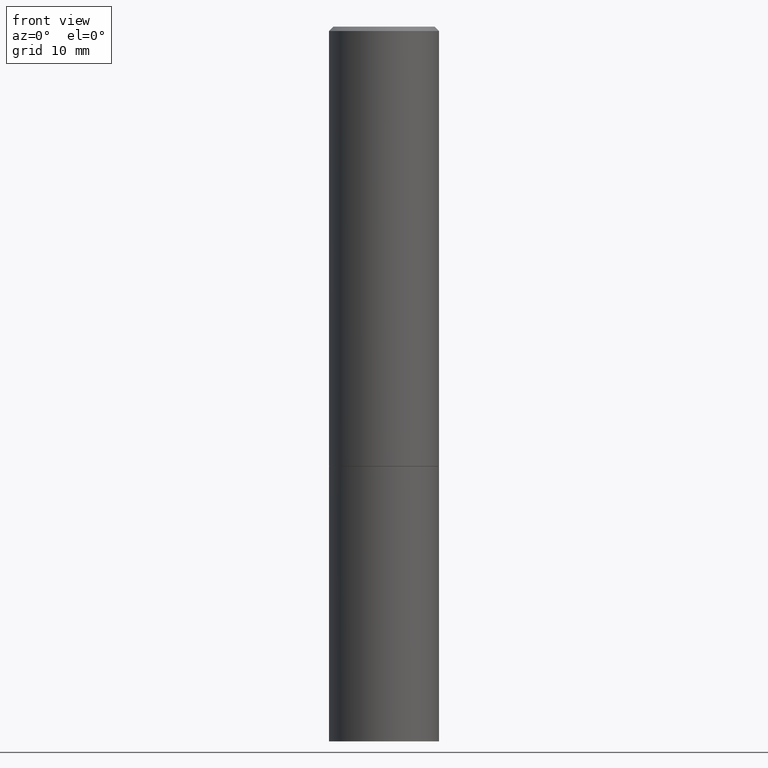
[diagram: clean part render]
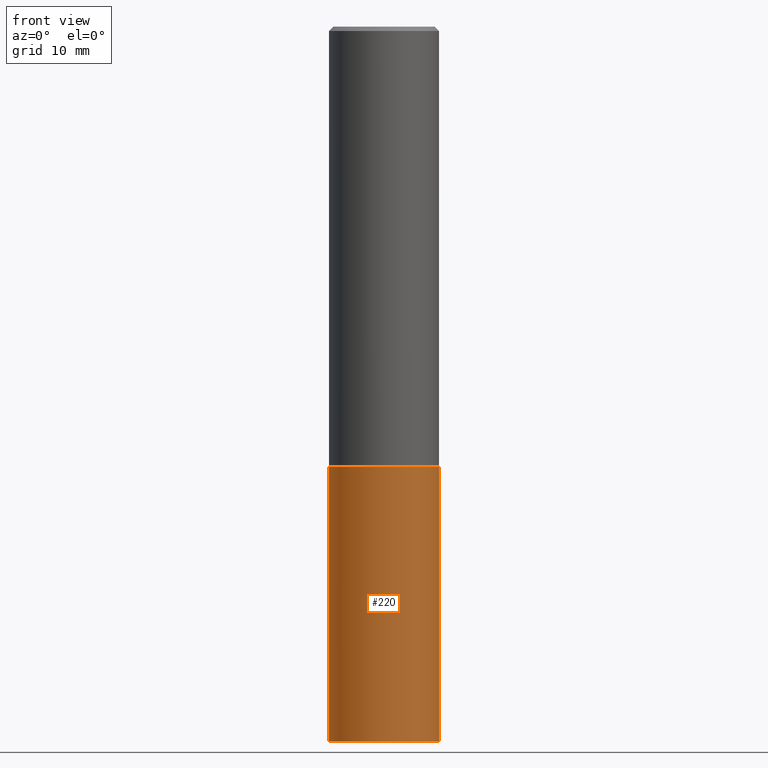
[diagram: same view with one face highlighted and labeled with its STEP entity id]
A machine part, front view. The second image highlights one B-rep face of the part: STEP entity #220.
In plain terms, the highlighted cylindrical surface (partial cylindrical patch) has radius 6.35 mm, axis along (-0, 0, 1).
Its self-contained STEP definition (entity closure, byte-faithful):
#2 = ORIENTED_EDGE ( 'NONE', *, *, #317, .T. ) ;
#3 = VERTEX_POINT ( 'NONE', #323 ) ;
#7 = DIRECTION ( 'NONE',  ( 1.000000000000000000, -6.982962677686266711E-15, 4.876176775795935793E-29 ) ) ;
#24 = VECTOR ( 'NONE', #332, 39.37007874015748143 ) ;
#28 = CARTESIAN_POINT ( 'NONE',  ( -0.2500000000000000000, -7.388781675063007725E-15, -2.000000000000000000 ) ) ;
#38 = EDGE_CURVE ( 'NONE', #135, #43, #155, .T. ) ;
#43 = VERTEX_POINT ( 'NONE', #98 ) ;
#48 = EDGE_CURVE ( 'NONE', #3, #118, #101, .T. ) ;
#53 = ORIENTED_EDGE ( 'NONE', *, *, #250, .F. ) ;
#62 = DIRECTION ( 'NONE',  ( -2.445468806185136597E-29, 3.491481338843145583E-15, 1.000000000000000000 ) ) ;
#66 = AXIS2_PLACEMENT_3D ( 'NONE', #318, #62, #7 ) ;
#98 = CARTESIAN_POINT ( 'NONE',  ( 0.2500000000000000000, -8.728703347107857054E-15, -2.000000000000000000 ) ) ;
#101 = LINE ( 'NONE', #106, #24 ) ;
#106 = CARTESIAN_POINT ( 'NONE',  ( -0.2500000000000000000, 1.776356839400250465E-15, -1.229733772563726445E-29 ) ) ;
#109 = AXIS2_PLACEMENT_3D ( 'NONE', #181, #287, #315 ) ;
#118 = VERTEX_POINT ( 'NONE', #28 ) ;
#135 = VERTEX_POINT ( 'NONE', #278 ) ;
#136 = CIRCLE ( 'NONE', #337, 0.2500000000000000000 ) ;
#150 = CARTESIAN_POINT ( 'NONE',  ( 4.890937612370273194E-29, -6.982962677686291165E-15, -2.000000000000000000 ) ) ;
#155 = LINE ( 'NONE', #265, #289 ) ;
#181 = CARTESIAN_POINT ( 'NONE',  ( 7.947773620101693940E-29, -1.134731435124022443E-14, -3.250000000000000000 ) ) ;
#192 = ORIENTED_EDGE ( 'NONE', *, *, #38, .T. ) ;
#220 = ADVANCED_FACE ( 'NONE', ( #291 ), #322, .T. ) ;
#236 = DIRECTION ( 'NONE',  ( -2.445468806185136597E-29, 3.491481338843145583E-15, 1.000000000000000000 ) ) ;
#241 = DIRECTION ( 'NONE',  ( -2.445468806185136877E-29, 3.491481338843145188E-15, 1.000000000000000000 ) ) ;
#250 = EDGE_CURVE ( 'NONE', #118, #43, #136, .T. ) ;
#265 = CARTESIAN_POINT ( 'NONE',  ( 0.2500000000000000000, -1.745740669421566678E-15, 1.219044193948983948E-29 ) ) ;
#278 = CARTESIAN_POINT ( 'NONE',  ( 0.2500000000000000000, -1.309305502066178953E-14, -3.250000000000000000 ) ) ;
#287 = DIRECTION ( 'NONE',  ( -2.445468806185136597E-29, 3.491481338843145583E-15, 1.000000000000000000 ) ) ;
#289 = VECTOR ( 'NONE', #241, 39.37007874015748143 ) ;
#290 = CIRCLE ( 'NONE', #109, 0.2500000000000000000 ) ;
#291 = FACE_OUTER_BOUND ( 'NONE', #350, .T. ) ;
#295 = ORIENTED_EDGE ( 'NONE', *, *, #48, .F. ) ;
#315 = DIRECTION ( 'NONE',  ( 1.000000000000000000, -6.982962677686262766E-15, 0.000000000000000000 ) ) ;
#317 = EDGE_CURVE ( 'NONE', #3, #135, #290, .T. ) ;
#318 = CARTESIAN_POINT ( 'NONE',  ( 0.000000000000000000, 0.000000000000000000, 0.000000000000000000 ) ) ;
#319 = DIRECTION ( 'NONE',  ( 1.000000000000000000, -6.982962677686266711E-15, 0.000000000000000000 ) ) ;
#322 = CYLINDRICAL_SURFACE ( 'NONE', #66, 0.2500000000000000000 ) ;
#323 = CARTESIAN_POINT ( 'NONE',  ( -0.2500000000000000000, -7.388781675063007725E-15, -3.250000000000000000 ) ) ;
#332 = DIRECTION ( 'NONE',  ( -2.445468806185136877E-29, 3.491481338843145188E-15, 1.000000000000000000 ) ) ;
#337 = AXIS2_PLACEMENT_3D ( 'NONE', #150, #236, #319 ) ;
#350 = EDGE_LOOP ( 'NONE', ( #295, #2, #192, #53 ) ) ;